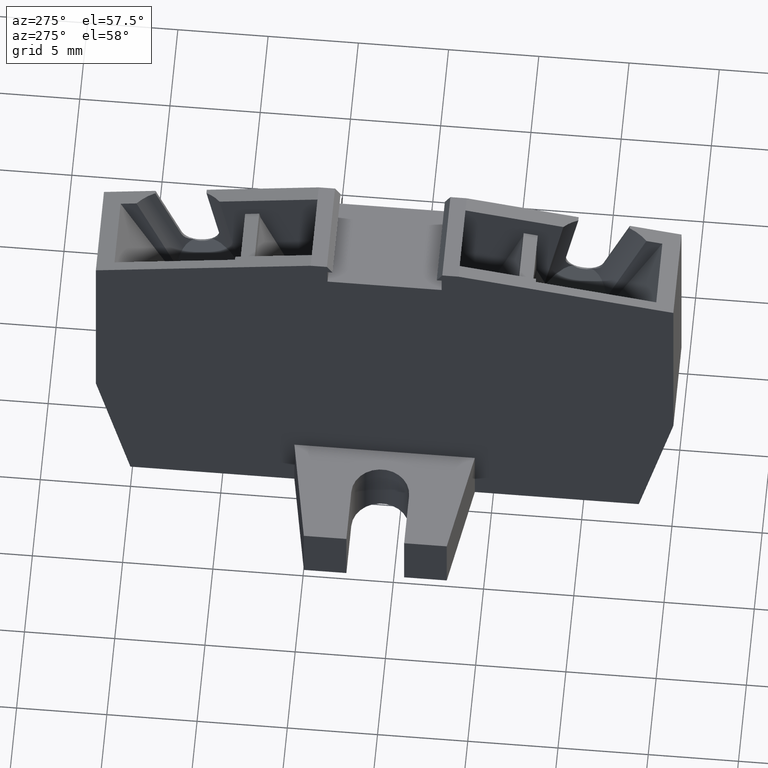
[diagram: clean part render]
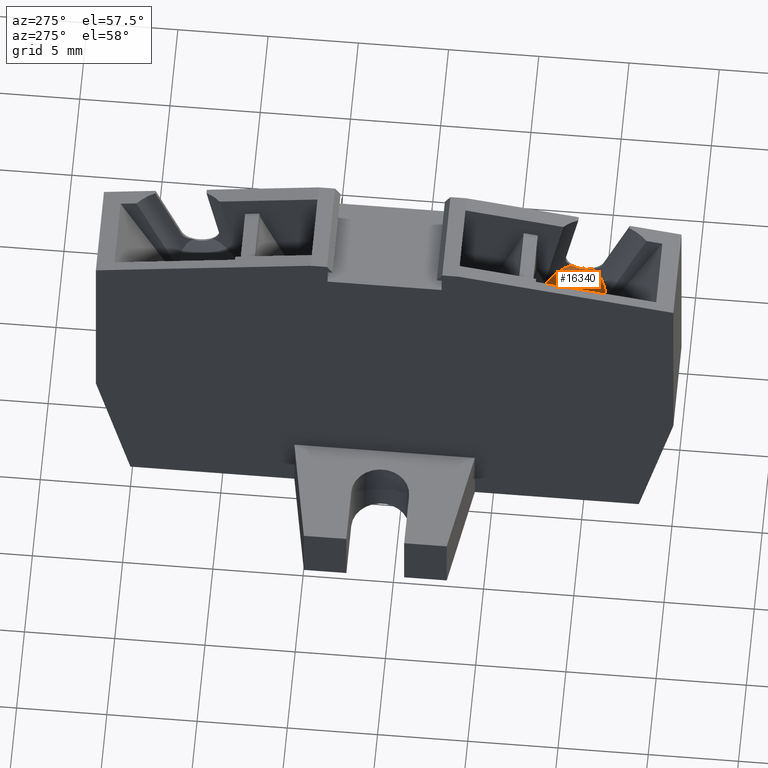
[diagram: same view with one face highlighted and labeled with its STEP entity id]
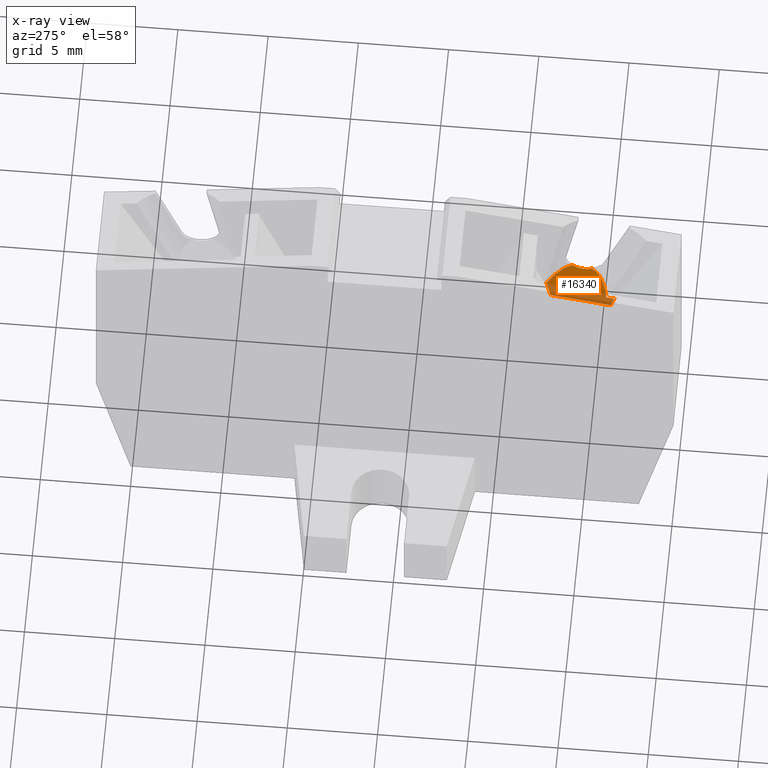
[diagram: x-ray of the same camera — body ghosted, the highlighted face saturated]
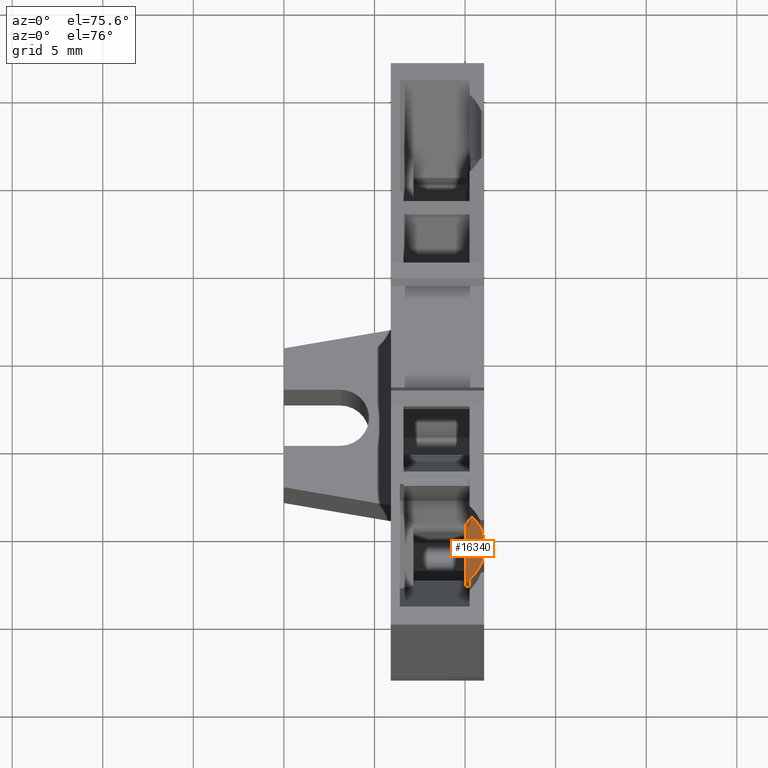
[diagram: same view with one face highlighted and labeled with its STEP entity id]
A machine part, auxiliary view. The second image highlights one B-rep face of the part: STEP entity #16340.
The next image is the same camera in x-ray: the body ghosted, the highlighted face saturated — about 40% of this face is hidden behind the body in this view.
A second angle (auxiliary view) of the same face is appended — the face is thin or edge-on in the first view.
In plain terms, the highlighted planar face has unit normal (0.8944, 0.0777, -0.4404).
Its self-contained STEP definition (entity closure, byte-faithful):
#9720=CARTESIAN_POINT('',(-3.88301912838973,121.218214358896,
56.0499999999999));
#9730=VERTEX_POINT('',#9720);
#11030=CARTESIAN_POINT('',(-4.49209986028681,120.791731439043,
55.7280332842626));
#11040=VERTEX_POINT('',#11030);
#11090=CARTESIAN_POINT('',(14.9125736183099,134.379030085255,
65.9855552557751));
#11100=DIRECTION('',(0.751705469568508,0.526349836305358,
0.397359707119521));
#11110=VECTOR('',#11100,1.);
#11120=LINE('',#11090,#11110);
#11130=EDGE_CURVE('',#11040,#9730,#11120,.T.);
#14560=CARTESIAN_POINT('',(-4.54769928257218,124.22605798754,
55.8499999999999));
#14570=VERTEX_POINT('',#14560);
#14600=CARTESIAN_POINT('',(-0.708639860021346,122.000100222464,
57.665222820032));
#14610=DIRECTION('',(0.445511812751615,0.038977233082654,
-0.894427190999911));
#14620=DIRECTION('',(0.891055517659299,-0.116198469117193,
0.438768709257782));
#14630=AXIS2_PLACEMENT_3D('',#14600,#14610,#14620);
#14640=ELLIPSE('',#14630,5.93842862956372,2.61539926958888);
#14650=CARTESIAN_POINT('',(-5.94843651070038,122.954273956026,
55.0968748590187));
#14660=VERTEX_POINT('',#14650);
#14670=EDGE_CURVE('',#14660,#14570,#14640,.T.);
#15460=CARTESIAN_POINT('',(-6.79969013977177,122.429519481064,
54.6499999999998));
#15470=DIRECTION('',(0.445511812751615,0.0389772330826541,
-0.894427190999911));
#15480=DIRECTION('',(0.891023625503203,0.0779544661653117,
0.447213595499968));
#15490=AXIS2_PLACEMENT_3D('',#15460,#15470,#15480);
#15500=ELLIPSE('',#15490,1.1180339887499,0.999999999999999);
#15510=CARTESIAN_POINT('',(-5.80349544168003,122.516675223812,
55.1499999999998));
#15520=VERTEX_POINT('',#15510);
#15530=EDGE_CURVE('',#14660,#15520,#15500,.T.);
#15780=CARTESIAN_POINT('',(-3.99632159396168,122.513267466415,
56.0499999999999));
#15790=DIRECTION('',(0.445511812751614,0.0389772330826541,
-0.894427190999911));
#15800=DIRECTION('',(0.891023625503204,0.0779544661653117,
0.447213595499968));
#15810=AXIS2_PLACEMENT_3D('',#15780,#15790,#15800);
#15820=PLANE('',#15810);
#15830=CARTESIAN_POINT('',(-1.20697680372313,122.757303514226,
57.4499998170948));
#15840=DIRECTION('',(0.445511812751615,0.038977233082654,
-0.894427190999911));
#15850=DIRECTION('',(0.891023625503203,0.0779544661653116,
0.447213595499968));
#15860=AXIS2_PLACEMENT_3D('',#15830,#15840,#15850);
#15870=ELLIPSE('',#15860,5.36656354612762,2.40000017894275);
#15880=CARTESIAN_POINT('',(-5.86052918241863,121.889599349605,
55.0942650131449));
#15890=VERTEX_POINT('',#15880);
#15900=EDGE_CURVE('',#11040,#15890,#15870,.T.);
#15910=ORIENTED_EDGE('',*,*,#15900,.F.);
#15920=CARTESIAN_POINT('',(-6.78566674861865,122.269231386722,
54.6499999999998));
#15930=DIRECTION('',(0.445511812751615,0.038977233082654,
-0.894427190999911));
#15940=DIRECTION('',(0.891023625503203,0.0779544661653116,
0.447213595499968));
#15950=AXIS2_PLACEMENT_3D('',#15920,#15930,#15940);
#15960=ELLIPSE('',#15950,1.1180339887499,0.999999999999999);
#15970=CARTESIAN_POINT('',(-5.78947205052692,122.356387129469,
55.1499999999998));
#15980=VERTEX_POINT('',#15970);
#15990=EDGE_CURVE('',#15980,#15890,#15960,.T.);
#16000=ORIENTED_EDGE('',*,*,#15990,.T.);
#16010=CARTESIAN_POINT('',(-1.70886352092585,75.7148182090424,55.15));
#16020=DIRECTION('',(-0.0871557427476714,0.996194698091745,
-2.62436464088746E-15));
#16030=VECTOR('',#16020,1.);
#16040=LINE('',#16010,#16030);
#16050=EDGE_CURVE('',#15980,#15520,#16040,.T.);
#16060=ORIENTED_EDGE('',*,*,#16050,.F.);
#16070=ORIENTED_EDGE('',*,*,#15530,.T.);
#16080=ORIENTED_EDGE('',*,*,#14670,.F.);
#16090=CARTESIAN_POINT('',(-0.303515748364948,75.7148182090426,
55.8500000000001));
#16100=DIRECTION('',(0.0871557427476749,-0.996194698091744,
4.3646645518162E-15));
#16110=VECTOR('',#16100,1.);
#16120=LINE('',#16090,#16110);
#16130=CARTESIAN_POINT('',(-4.58702820632641,124.675589643063,
55.8499999999999));
#16140=VERTEX_POINT('',#16130);
#16150=EDGE_CURVE('',#16140,#14570,#16120,.T.);
#16160=ORIENTED_EDGE('',*,*,#16150,.T.);
#16170=CARTESIAN_POINT('',(30.7687890493702,119.202219952496,
73.2221210480562));
#16180=DIRECTION('',(-0.888970892834672,0.137619965208238,
-0.436796859957589));
#16190=VECTOR('',#16180,1.);
#16200=LINE('',#16170,#16190);
#16210=CARTESIAN_POINT('',(-4.17998732562005,124.612576385495,
56.0499999999999));
#16220=VERTEX_POINT('',#16210);
#16230=EDGE_CURVE('',#16220,#16140,#16200,.T.);
#16240=ORIENTED_EDGE('',*,*,#16230,.T.);
#16250=CARTESIAN_POINT('',(0.0980121866519816,75.7148182090426,56.05));
#16260=DIRECTION('',(-0.0871557427476668,0.996194698091745,
-2.60182035848755E-15));
#16270=VECTOR('',#16260,1.);
#16280=LINE('',#16250,#16270);
#16290=EDGE_CURVE('',#9730,#16220,#16280,.T.);
#16300=ORIENTED_EDGE('',*,*,#16290,.T.);
#16310=ORIENTED_EDGE('',*,*,#11130,.T.);
#16320=EDGE_LOOP('',(#16310,#16300,#16240,#16160,#16080,#16070,#16060,
#16000,#15910));
#16330=FACE_OUTER_BOUND('',#16320,.T.);
#16340=ADVANCED_FACE('',(#16330),#15820,.F.);